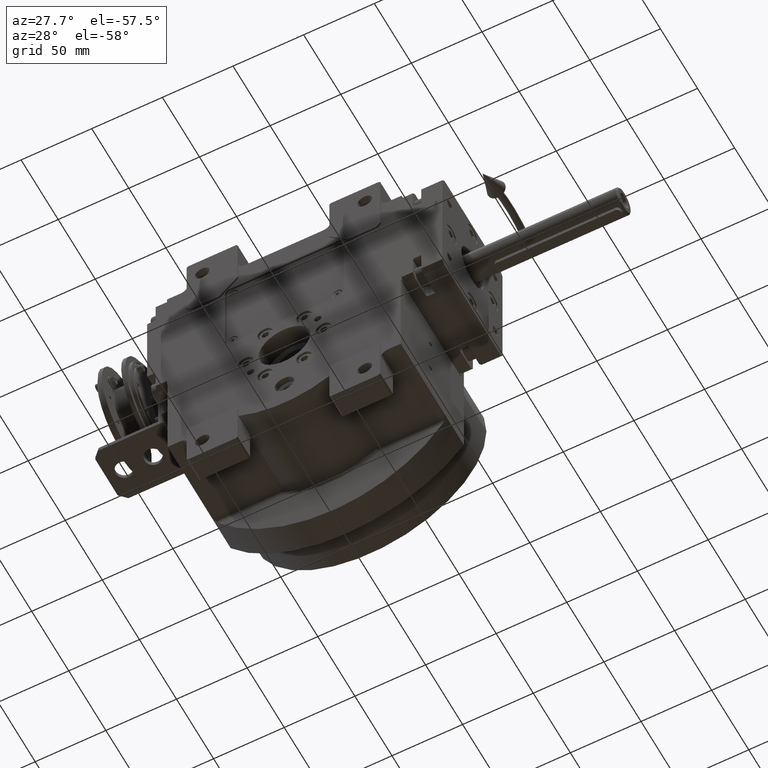
[diagram: clean part render]
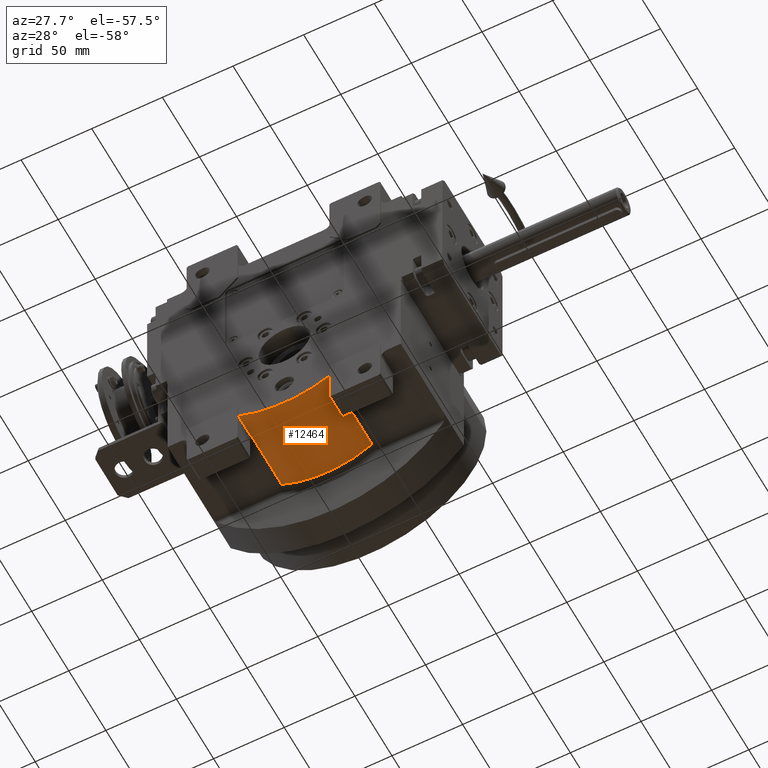
[diagram: same view with one face highlighted and labeled with its STEP entity id]
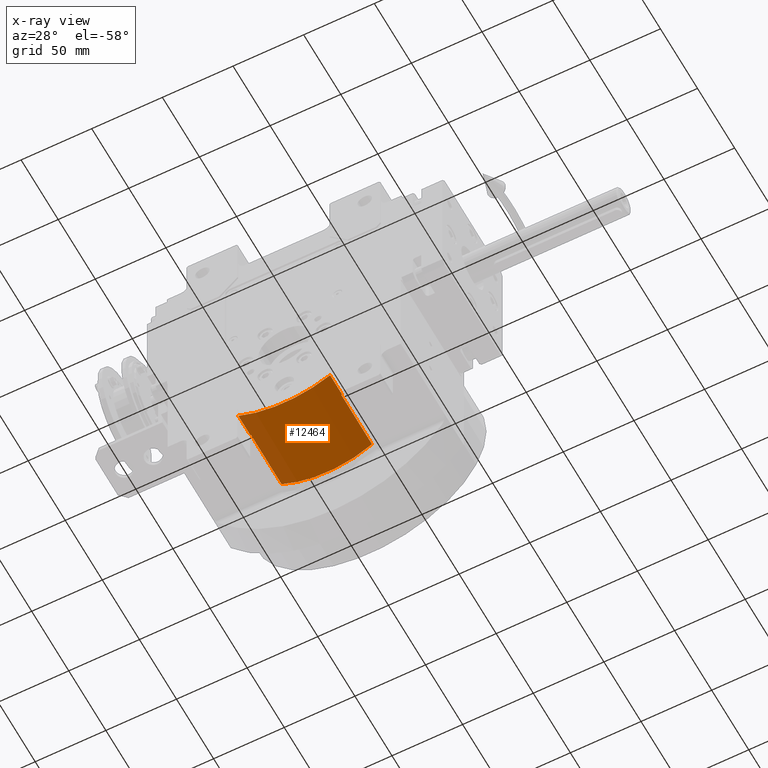
[diagram: x-ray of the same camera — body ghosted, the highlighted face saturated]
A machine part, auxiliary view. The second image highlights one B-rep face of the part: STEP entity #12464.
The next image is the same camera in x-ray: the body ghosted, the highlighted face saturated — about 0% of this face is hidden behind the body in this view.
In plain terms, the highlighted cylindrical surface (partial cylindrical patch) has radius 67 mm, axis along (0, 1, 0).
Its self-contained STEP definition (entity closure, byte-faithful):
#1345 = CARTESIAN_POINT ( 'NONE',  ( -32.32912243285621656, -24.50000000000000000, -58.68348866907366101 ) ) ;
#1746 = EDGE_CURVE ( 'NONE', #24866, #67440, #38071, .T. ) ;
#2887 = VERTEX_POINT ( 'NONE', #18548 ) ;
#3620 = EDGE_CURVE ( 'NONE', #71931, #37202, #21432, .T. ) ;
#5334 = CARTESIAN_POINT ( 'NONE',  ( -31.98736729856865324, -24.50000000000000000, -58.87111629064339979 ) ) ;
#6030 = CYLINDRICAL_SURFACE ( 'NONE', #7750, 67.00000000000000000 ) ;
#7474 = EDGE_CURVE ( 'NONE', #2887, #37886, #52993, .T. ) ;
#7750 = AXIS2_PLACEMENT_3D ( 'NONE', #19913, #32958, #32074 ) ;
#7852 = ORIENTED_EDGE ( 'NONE', *, *, #22583, .T. ) ;
#8812 = CARTESIAN_POINT ( 'NONE',  ( -31.98736729856865324, -24.50000000000000000, -58.87111629064339979 ) ) ;
#10615 = CARTESIAN_POINT ( 'NONE',  ( -4.980135495433235526, 17.68818881517152874, -67.05937529452785384 ) ) ;
#10659 = EDGE_LOOP ( 'NONE', ( #75853, #51189, #47320, #19672, #41061, #18069, #7852, #22425 ) ) ;
#12464 = ADVANCED_FACE ( 'NONE', ( #25552 ), #6030, .T. ) ;
#13680 = DIRECTION ( 'NONE',  ( -2.333977630622874967E-06, 0.9999999999964721553, 1.268123427896753933E-06 ) ) ;
#13993 = CARTESIAN_POINT ( 'NONE',  ( -32.15824486571243312, -24.50000000000000000, -58.77730247985853396 ) ) ;
#14997 = EDGE_CURVE ( 'NONE', #71931, #2887, #16239, .T. ) ;
#15801 = VECTOR ( 'NONE', #13680, 1000.000000000000114 ) ;
#16239 = LINE ( 'NONE', #23161, #69090 ) ;
#18069 = ORIENTED_EDGE ( 'NONE', *, *, #36914, .F. ) ;
#18548 = CARTESIAN_POINT ( 'NONE',  ( 31.98743443817719623, 16.91834202203235193, -58.87106939620260704 ) ) ;
#19672 = ORIENTED_EDGE ( 'NONE', *, *, #1746, .F. ) ;
#19913 = CARTESIAN_POINT ( 'NONE',  ( 0.000000000000000000, -40.50000000000000000, 6.123233995736770082E-21 ) ) ;
#21432 = B_SPLINE_CURVE_WITH_KNOTS ( 'NONE', 3,
 ( #65519, #38201, #39922, #39043 ),
 .UNSPECIFIED., .F., .F.,
 ( 4, 4 ),
 ( 0.000000000000000000, 1.000000000000000000 ),
 .UNSPECIFIED. ) ;
#22425 = ORIENTED_EDGE ( 'NONE', *, *, #7474, .F. ) ;
#22583 = EDGE_CURVE ( 'NONE', #62781, #37886, #73128, .T. ) ;
#22702 = B_SPLINE_CURVE_WITH_KNOTS ( 'NONE', 3,
 ( #5334, #13993, #1345, #26563 ),
 .UNSPECIFIED., .F., .F.,
 ( 4, 4 ),
 ( 0.000000000000000000, 1.000000000000000000 ),
 .UNSPECIFIED. ) ;
#22987 = EDGE_CURVE ( 'NONE', #44817, #24866, #67251, .T. ) ;
#23161 = CARTESIAN_POINT ( 'NONE',  ( 31.98736729856859640, -24.50000000000000000, -58.87111629064349927 ) ) ;
#24042 = CARTESIAN_POINT ( 'NONE',  ( 31.98743443817719623, 16.91834202203235193, -58.87106939620260704 ) ) ;
#24866 = VERTEX_POINT ( 'NONE', #63236 ) ;
#25552 = FACE_OUTER_BOUND ( 'NONE', #10659, .T. ) ;
#26563 = CARTESIAN_POINT ( 'NONE',  ( -32.50000000000000000, -24.50000000000000000, -58.58967485828879518 ) ) ;
#28414 = AXIS2_PLACEMENT_3D ( 'NONE', #43979, #43109, #44793 ) ;
#30096 = VECTOR ( 'NONE', #57584, 1000.000000000000000 ) ;
#31968 = CARTESIAN_POINT ( 'NONE',  ( 32.50000000000000000, -24.50000000000000000, -58.58967485828879518 ) ) ;
#32074 = DIRECTION ( 'NONE',  ( 0.000000000000000000, 0.000000000000000000, 1.000000000000000000 ) ) ;
#32958 = DIRECTION ( 'NONE',  ( 0.000000000000000000, 1.000000000000000000, 0.000000000000000000 ) ) ;
#33841 = DIRECTION ( 'NONE',  ( 0.000000000000000000, -1.000000000000000000, 0.000000000000000000 ) ) ;
#36914 = EDGE_CURVE ( 'NONE', #62781, #44817, #22702, .T. ) ;
#37149 = CARTESIAN_POINT ( 'NONE',  ( 31.98736729856859640, -24.50000000000000000, -58.87111629064349927 ) ) ;
#37202 = VERTEX_POINT ( 'NONE', #46445 ) ;
#37886 = VERTEX_POINT ( 'NONE', #59554 ) ;
#37897 = CARTESIAN_POINT ( 'NONE',  ( 23.82086331600217122, 17.29258934410870197, -62.85166114526040104 ) ) ;
#38071 = CIRCLE ( 'NONE', #28414, 66.99999999999998579 ) ;
#38201 = CARTESIAN_POINT ( 'NONE',  ( 32.15865320869608013, -24.50000000000000000, -58.77804882962796285 ) ) ;
#39043 = CARTESIAN_POINT ( 'NONE',  ( 32.50000000000000000, -24.50000000000000000, -58.58967485828879518 ) ) ;
#39922 = CARTESIAN_POINT ( 'NONE',  ( 32.32953294561936985, -24.50000000000000000, -58.68423382760842344 ) ) ;
#41061 = ORIENTED_EDGE ( 'NONE', *, *, #22987, .F. ) ;
#43109 = DIRECTION ( 'NONE',  ( 0.000000000000000000, -1.000000000000000000, 0.000000000000000000 ) ) ;
#43979 = CARTESIAN_POINT ( 'NONE',  ( -1.065814103640149963E-14, -40.50000000000000000, -4.263256414560599853E-14 ) ) ;
#44793 = DIRECTION ( 'NONE',  ( -0.4850746268656720428, 0.000000000000000000, -0.8744727590789371785 ) ) ;
#44817 = VERTEX_POINT ( 'NONE', #76625 ) ;
#46304 = LINE ( 'NONE', #31968, #30096 ) ;
#46445 = CARTESIAN_POINT ( 'NONE',  ( 32.50000000000000000, -24.50000000000000000, -58.58967485828879518 ) ) ;
#47320 = ORIENTED_EDGE ( 'NONE', *, *, #68060, .T. ) ;
#50525 = CARTESIAN_POINT ( 'NONE',  ( 29.44072205902208239, 17.04842239295195228, -60.25462851536783404 ) ) ;
#51189 = ORIENTED_EDGE ( 'NONE', *, *, #3620, .T. ) ;
#52993 = B_SPLINE_CURVE_WITH_KNOTS ( 'NONE', 3,
 ( #24042, #50525, #37897, #76147, #77418, #10615, #64393, #69198, #70058, #63563 ),
 .UNSPECIFIED., .F., .F.,
 ( 4, 1, 1, 1, 1, 1, 1, 4 ),
 ( 0.000000000000000000, 0.1305023962609451471, 0.2778841802425977558, 0.4260802021475848522, 0.5745278981235040217, 0.7227241387829929087, 0.8701063549861712820, 1.000000000000000000 ),
 .UNSPECIFIED. ) ;
#56000 = VECTOR ( 'NONE', #33841, 1000.000000000000000 ) ;
#57584 = DIRECTION ( 'NONE',  ( 0.000000000000000000, -1.000000000000000000, 1.332267629550188046E-15 ) ) ;
#59554 = CARTESIAN_POINT ( 'NONE',  ( -31.98743979880390498, 16.91834305889650025, -58.87107689861610282 ) ) ;
#62620 = CARTESIAN_POINT ( 'NONE',  ( 32.50000000000000000, -40.50000000000000000, -58.58967485828879518 ) ) ;
#62781 = VERTEX_POINT ( 'NONE', #8812 ) ;
#63236 = CARTESIAN_POINT ( 'NONE',  ( -32.50000000000000000, -40.50000000000000000, -58.58967485828879518 ) ) ;
#63563 = CARTESIAN_POINT ( 'NONE',  ( -31.98743979880390498, 16.91834305889650025, -58.87107689861610282 ) ) ;
#64393 = CARTESIAN_POINT ( 'NONE',  ( -14.77288173921127701, 17.55091193554919471, -65.59925739486833152 ) ) ;
#65519 = CARTESIAN_POINT ( 'NONE',  ( 31.98736729856859640, -24.50000000000000000, -58.87111629064349927 ) ) ;
#66400 = CARTESIAN_POINT ( 'NONE',  ( -32.50000000000000000, -24.50000000000000000, -58.58967485828879518 ) ) ;
#67024 = CARTESIAN_POINT ( 'NONE',  ( -31.98736729856865324, -24.50000000000000000, -58.87111629064339979 ) ) ;
#67251 = LINE ( 'NONE', #66400, #56000 ) ;
#67440 = VERTEX_POINT ( 'NONE', #62620 ) ;
#68060 = EDGE_CURVE ( 'NONE', #37202, #67440, #46304, .T. ) ;
#69090 = VECTOR ( 'NONE', #75235, 1000.000000000000000 ) ;
#69198 = CARTESIAN_POINT ( 'NONE',  ( -23.84593580562536630, 17.29160312582579095, -62.84117143299615549 ) ) ;
#70058 = CARTESIAN_POINT ( 'NONE',  ( -29.45257542784745652, 17.04781651606748127, -60.24818422784169769 ) ) ;
#71931 = VERTEX_POINT ( 'NONE', #37149 ) ;
#73128 = LINE ( 'NONE', #67024, #15801 ) ;
#75235 = DIRECTION ( 'NONE',  ( 2.301971673942290477E-06, 0.9999999999965683006, 1.250768801893084184E-06 ) ) ;
#75853 = ORIENTED_EDGE ( 'NONE', *, *, #14997, .F. ) ;
#76147 = CARTESIAN_POINT ( 'NONE',  ( 14.73316218924969867, 17.55175164572757396, -65.60818880316627144 ) ) ;
#76625 = CARTESIAN_POINT ( 'NONE',  ( -32.50000000000000000, -24.50000000000000000, -58.58967485828879518 ) ) ;
#77418 = CARTESIAN_POINT ( 'NONE',  ( 4.939540285032240519, 17.68847108994751594, -67.06237765336878454 ) ) ;